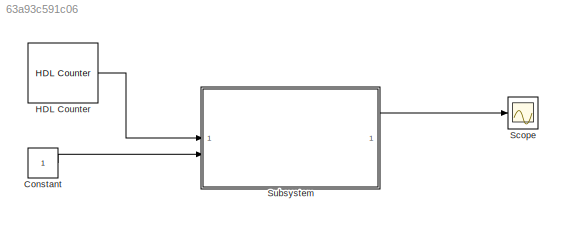
MODEL slx_63a93c591c06
KIND model
CONFIG AbsTol = auto
CONFIG EnableMultiTasking = off
CONFIG FixedStep = auto
CONFIG MaxStep = 1e-8
CONFIG MinStep = auto
CONFIG RelTol = 1e-3
CONFIG SampleTimeConstraint = Unconstrained
CONFIG SolverName = FixedStepAuto
CONFIG StartTime = 0.0
CONFIG StopTime = 1
BLOCK [Constant] Constant
  OutDataTypeStr = boolean
BLOCK [Reference] HDL Counter  REF=hdlsllib/Sources/HDL Counter
  SourceBlock = hdlsllib/Sources/HDL Counter
  SourceType = HDL Counter
BLOCK [Scope] Scope
  Floating = off
  NumInputPorts = 1
  ScopeSpecificationString = Simulink.scopes.TimeScopeBlockCfg('CurrentConfiguration', extmgr.ConfigurationSet(extmgr.Configuration('Core','General UI',true),extmgr.Configuration('Core','Source UI',true),extmgr.Configuration('Sources','WiredSimulink',true),extmgr.Configuration('Visuals','Time Domain',true,'SerializedDisplays',{struct('MinYLimReal','-1.25','MaxYLimReal','1.25','YLabelReal','','MinYLimMag','0.00000','MaxYLimMag...<+1386ch>
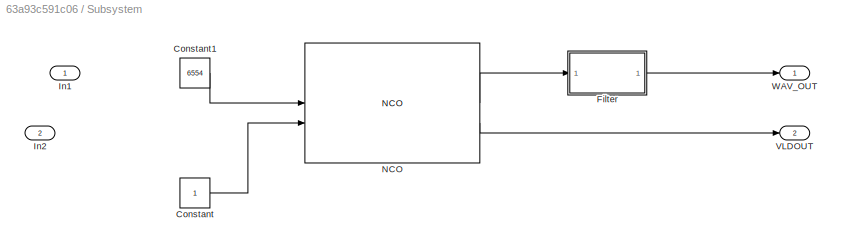
BLOCK [SubSystem] Subsystem
BLOCK [Constant] Subsystem/Constant
  OutDataTypeStr = boolean
  SampleTime = 1/100000
BLOCK [Constant] Subsystem/Constant1
  SampleTime = 1/100000
  Value = 6554
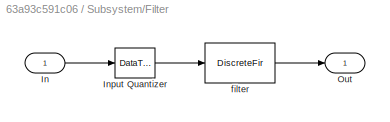
BLOCK [SubSystem] Subsystem/Filter
  Tag = BlockMethodSubSystem
BLOCK [Inport] Subsystem/Filter/In
BLOCK [DataTypeConversion] Subsystem/Filter/Input Quantizer
  OutDataTypeStr = fixdt(1,16,15)
  RndMeth = Round
BLOCK [Outport] Subsystem/Filter/Out
BLOCK [DiscreteFir] Subsystem/Filter/filter
  AccumDataTypeStr = fixdt(true,33,30)
  CoefDataTypeStr = fixdt(false,16,16)
  Coefficients = [-0.000613535726833574352 0.00039610627927773171 -7.85646380987156457e-18 -0.000477198755296996788 0.000879639178195992886 -0.00101764246035848118 0.000734305574276288941 5.74433321343095593e-18 -0.00101049560227826018 0.00191593147758841505 -0.00223842673678539958 0.00161009807669441028 -3.11094400855593708e-17 -0.00215299220919710653 0.00400215318464021679 -0.00457889929662995149 0.0032252467306...<+1473ch>
  InputPortMap = u0
  InputProcessing = Columns as channels (frame based)
  OutDataTypeStr = fixdt(true,16,15)
  OutputPortMap = o0
  ProductDataTypeStr = fixdt(true,31,30)
  RndMeth = Convergent
BLOCK [Inport] Subsystem/In1
BLOCK [Inport] Subsystem/In2
  Port = 2
BLOCK [Reference] Subsystem/NCO  REF=dsphdlsigops2/NCO
  LibrarySourceBlock = dsphdlsrcs2/NCO
  SourceBlock = dsphdlsigops2/NCO
  SourceType = NCO
BLOCK [Outport] Subsystem/VLDOUT
  Port = 2
BLOCK [Outport] Subsystem/WAV_OUT
LINE Constant:1 -> Subsystem:2
LINE HDL Counter:1 -> Subsystem:1
LINE Subsystem/Constant1:1 -> Subsystem/NCO:1
LINE Subsystem/Constant:1 -> Subsystem/NCO:2
LINE Subsystem/Filter/In:1 -> Subsystem/Filter/Input Quantizer:1
LINE Subsystem/Filter/Input Quantizer:1 -> Subsystem/Filter/filter:1
LINE Subsystem/Filter/filter:1 -> Subsystem/Filter/Out:1
LINE Subsystem/Filter:1 -> Subsystem/WAV_OUT:1
LINE Subsystem/NCO:1 -> Subsystem/Filter:1
LINE Subsystem/NCO:2 -> Subsystem/VLDOUT:1
LINE Subsystem:1 -> Scope:1
